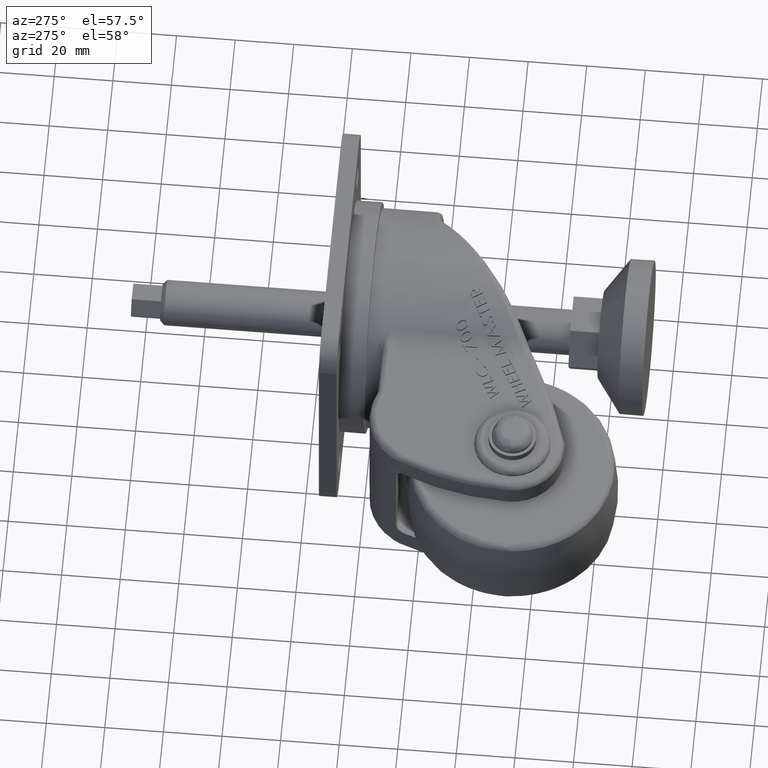
[diagram: clean part render]
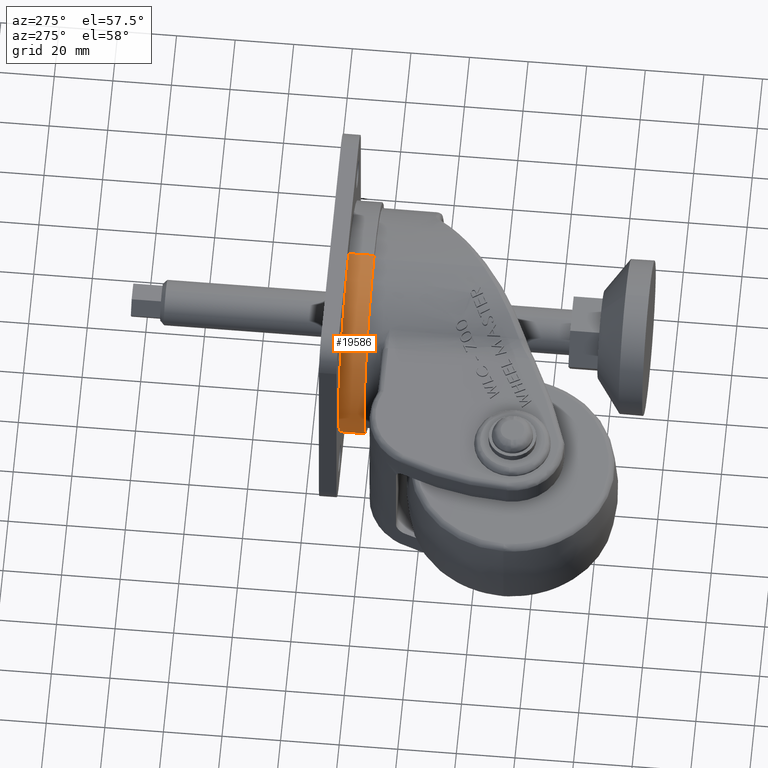
[diagram: same view with one face highlighted and labeled with its STEP entity id]
A machine part, auxiliary view. The second image highlights one B-rep face of the part: STEP entity #19586.
In plain terms, the highlighted cylindrical surface (partial cylindrical patch) has radius 39.5 mm, axis along (-0, 1, -0).
Its self-contained STEP definition (entity closure, byte-faithful):
#916 = DIRECTION ( 'NONE',  ( 0.000000000000000000, 0.000000000000000000, 1.000000000000000000 ) ) ;
#1031 = CARTESIAN_POINT ( 'NONE',  ( 0.000000000000000000, 80.29999999999999716, 39.49999998040800619 ) ) ;
#1117 = CARTESIAN_POINT ( 'NONE',  ( -33.19745024419440682, 89.00000000000000000, 21.41497115212920832 ) ) ;
#1187 = EDGE_CURVE ( 'NONE', #5779, #20802, #22729, .T. ) ;
#1197 = DIRECTION ( 'NONE',  ( -0.000000000000000000, 1.000000000000000000, -0.000000000000000000 ) ) ;
#1387 = DIRECTION ( 'NONE',  ( -0.000000000000000000, 1.000000000000000000, -0.000000000000000000 ) ) ;
#1428 = CARTESIAN_POINT ( 'NONE',  ( -35.99035355916140588, 89.00000000000000000, -16.29013500777266543 ) ) ;
#1588 = CARTESIAN_POINT ( 'NONE',  ( -36.25297974065697559, 89.00000000000002842, -15.69681455255533820 ) ) ;
#1749 = CARTESIAN_POINT ( 'NONE',  ( -38.86586528421318576, 89.00000000000001421, -7.078944962928213513 ) ) ;
#2421 = EDGE_LOOP ( 'NONE', ( #7280, #17792, #18849, #7756 ) ) ;
#3267 = EDGE_CURVE ( 'NONE', #17412, #19523, #11361, .T. ) ;
#3739 = CYLINDRICAL_SURFACE ( 'NONE', #18705, 39.49999998040800619 ) ;
#3817 = CARTESIAN_POINT ( 'NONE',  ( -17.51760761316806025, 89.00000000000001421, 35.49772075280378658 ) ) ;
#3975 = CARTESIAN_POINT ( 'NONE',  ( -23.02495189201184544, 89.00000000000000000, -32.12097803724487477 ) ) ;
#4132 = CARTESIAN_POINT ( 'NONE',  ( -31.41353265104559966, 89.00000000000000000, -24.08457150947154446 ) ) ;
#4295 = CARTESIAN_POINT ( 'NONE',  ( -39.50045397207421161, 89.00000000000001421, -1.274169800030141131 ) ) ;
#4929 = CARTESIAN_POINT ( 'NONE',  ( -5.174531956017145440, 88.99999999999997158, -39.16496630718565797 ) ) ;
#5779 = VERTEX_POINT ( 'NONE', #1031 ) ;
#6063 = CARTESIAN_POINT ( 'NONE',  ( -31.39276687934174248, 88.99999999999998579, 24.11413041087000053 ) ) ;
#6376 = CARTESIAN_POINT ( 'NONE',  ( -33.54721165273151229, 88.99999999999998579, 20.86283143604106982 ) ) ;
#6437 = EDGE_CURVE ( 'NONE', #17412, #5779, #16722, .T. ) ;
#6531 = CARTESIAN_POINT ( 'NONE',  ( -17.49518972110892179, 89.00000000000000000, -35.43793473315627551 ) ) ;
#6689 = CARTESIAN_POINT ( 'NONE',  ( -38.47152834015487599, 89.00000000000001421, 8.978527087342175861 ) ) ;
#6714 = CARTESIAN_POINT ( 'NONE',  ( 4.837354854232717909E-15, 80.29999999999999716, -39.49999998040800619 ) ) ;
#7169 = CARTESIAN_POINT ( 'NONE',  ( -4.527680217453908362, 89.00000000000002842, -39.24506134958510017 ) ) ;
#7280 = ORIENTED_EDGE ( 'NONE', *, *, #3267, .F. ) ;
#7756 = ORIENTED_EDGE ( 'NONE', *, *, #27785, .T. ) ;
#8413 = CARTESIAN_POINT ( 'NONE',  ( 0.000000000000000000, 80.29999999999999716, 0.000000000000000000 ) ) ;
#8452 = CARTESIAN_POINT ( 'NONE',  ( -38.61485039273876652, 89.00000000000000000, 8.340605067278458407 ) ) ;
#8607 = VECTOR ( 'NONE', #8973, 1000.000000000000000 ) ;
#8609 = CARTESIAN_POINT ( 'NONE',  ( -38.15530545590758749, 89.00000000000001421, 10.23938997459638500 ) ) ;
#8763 = CARTESIAN_POINT ( 'NONE',  ( -10.21437220741271368, 89.00000000000000000, 38.17849922172364785 ) ) ;
#8918 = CARTESIAN_POINT ( 'NONE',  ( -24.04196655938168092, 89.00000000000001421, 31.34732559918018069 ) ) ;
#8973 = DIRECTION ( 'NONE',  ( -0.000000000000000000, 1.000000000000000000, -0.000000000000000000 ) ) ;
#9076 = CARTESIAN_POINT ( 'NONE',  ( -39.49908455709736899, 89.00000000000004263, 2.590330965653628414 ) ) ;
#10838 = CARTESIAN_POINT ( 'NONE',  ( -39.24730955313710012, 89.00000000000000000, -4.507983966072860227 ) ) ;
#10992 = CARTESIAN_POINT ( 'NONE',  ( -2.609856899814779752, 89.00000000000002842, 39.49999998040800619 ) ) ;
#11154 = CARTESIAN_POINT ( 'NONE',  ( -34.22271481066151466, 89.00000000000001421, -19.76712995062742095 ) ) ;
#11224 = FACE_OUTER_BOUND ( 'NONE', #2421, .T. ) ;
#11309 = CARTESIAN_POINT ( 'NONE',  ( -22.47037621397057805, 88.99999999999998579, 32.49228740439585295 ) ) ;
#11361 = LINE ( 'NONE', #30832, #8607 ) ;
#11467 = CARTESIAN_POINT ( 'NONE',  ( -35.14033783241541897, 89.00000000000002842, -18.05069430069393377 ) ) ;
#12101 = CARTESIAN_POINT ( 'NONE',  ( 0.000000000000000000, 89.00000000000000000, -39.49999998040801330 ) ) ;
#12990 = CARTESIAN_POINT ( 'NONE',  ( 0.000000000000000000, 192.3175057826853731, 0.000000000000000000 ) ) ;
#13381 = CARTESIAN_POINT ( 'NONE',  ( -26.06665951449643970, 89.00000000000005684, 29.70648275346875877 ) ) ;
#13536 = CARTESIAN_POINT ( 'NONE',  ( -38.97669330826295209, 88.99999999999998579, -6.441195291799109768 ) ) ;
#13696 = AXIS2_PLACEMENT_3D ( 'NONE', #8413, #1387, #916 ) ;
#13698 = CARTESIAN_POINT ( 'NONE',  ( -34.53534946008901585, 89.00000000000000000, 19.18274136650292760 ) ) ;
#13859 = CARTESIAN_POINT ( 'NONE',  ( -12.07570735347381508, 89.00000000000000000, 37.61445987058849738 ) ) ;
#14488 = CARTESIAN_POINT ( 'NONE',  ( -10.25733566947780240, 89.00000000000000000, -38.23213192655326509 ) ) ;
#15757 = CARTESIAN_POINT ( 'NONE',  ( -22.99944763074397258, 88.99999999999997158, 32.12003092999924547 ) ) ;
#16062 = CARTESIAN_POINT ( 'NONE',  ( -26.05326718217936488, 89.00000000000001421, -29.71769941146912686 ) ) ;
#16219 = CARTESIAN_POINT ( 'NONE',  ( -29.75766879086607375, 89.00000000000002842, 26.10311699358117110 ) ) ;
#16377 = CARTESIAN_POINT ( 'NONE',  ( -19.78657433829789980, 88.99999999999998579, 34.28419849795676555 ) ) ;
#16722 = CIRCLE ( 'NONE', #13696, 39.49999998040800619 ) ;
#17412 = VERTEX_POINT ( 'NONE', #6714 ) ;
#17792 = ORIENTED_EDGE ( 'NONE', *, *, #6437, .T. ) ;
#18152 = CARTESIAN_POINT ( 'NONE',  ( -38.23549784011640185, 89.00000000000001421, -10.24538263782099534 ) ) ;
#18309 = CARTESIAN_POINT ( 'NONE',  ( -39.16734450065771966, 89.00000000000000000, -5.156621258177087164 ) ) ;
#18463 = CARTESIAN_POINT ( 'NONE',  ( -27.01593694406648183, 89.00000000000002842, -28.84594908612081099 ) ) ;
#18617 = CARTESIAN_POINT ( 'NONE',  ( -39.43805726543504875, 89.00000000000001421, -2.565648098261644972 ) ) ;
#18705 = AXIS2_PLACEMENT_3D ( 'NONE', #12990, #1197, #20923 ) ;
#18777 = CARTESIAN_POINT ( 'NONE',  ( -36.54995612484427880, 88.99999999999998579, 15.14289280863388498 ) ) ;
#18849 = ORIENTED_EDGE ( 'NONE', *, *, #1187, .T. ) ;
#19523 = VERTEX_POINT ( 'NONE', #30529 ) ;
#19562 = CARTESIAN_POINT ( 'NONE',  ( 0.000000000000000000, 89.00000000000000000, 39.49999998040802041 ) ) ;
#19570 = CARTESIAN_POINT ( 'NONE',  ( -6.457115939170653185, 89.00000000000000000, -38.97404290749087608 ) ) ;
#19586 = ADVANCED_FACE ( 'NONE', ( #11224 ), #3739, .T. ) ;
#19784 = VECTOR ( 'NONE', #28003, 1000.000000000000000 ) ;
#20537 = CARTESIAN_POINT ( 'NONE',  ( -12.69451544413083788, 89.00000000000000000, 37.41021377331797026 ) ) ;
#20690 = CARTESIAN_POINT ( 'NONE',  ( -34.21598413539322792, 89.00000000000000000, 19.74688772562268468 ) ) ;
#20802 = VERTEX_POINT ( 'NONE', #19562 ) ;
#20854 = CARTESIAN_POINT ( 'NONE',  ( -33.55868862091993066, 88.99999999999998579, -20.87393282270026162 ) ) ;
#20923 = DIRECTION ( 'NONE',  ( 0.000000000000000000, 0.000000000000000000, 1.000000000000000000 ) ) ;
#21014 = CARTESIAN_POINT ( 'NONE',  ( -35.43382847852748796, 89.00000000000001421, -17.46762282736825966 ) ) ;
#21170 = CARTESIAN_POINT ( 'NONE',  ( -19.78001912904785797, 89.00000000000000000, -34.21519727816194489 ) ) ;
#22729 = LINE ( 'NONE', #27690, #19784 ) ;
#23109 = CARTESIAN_POINT ( 'NONE',  ( -27.02470238274767667, 89.00000000000001421, 28.83705692550741517 ) ) ;
#23135 = B_SPLINE_CURVE_WITH_KNOTS ( 'NONE', 3,
 ( #25505, #10992, #28221, #28378, #8763, #13859, #20537, #23582, #30455, #3817, #16377, #11309, #15757, #8918, #27914, #13381, #23109, #16219, #6063, #1117, #6376, #20690, #13698, #28542, #18777, #30297, #28068, #8609, #6689, #8452, #23429, #9076, #4295, #18617, #10838, #18309, #13536, #1749, #18152, #23270, #1588, #1428, #21014, #11467, #11154, #20854, #4132, #30615, #18463, #16062, #25815, #3975, #30770, #21170, #6531, #25980, #30931, #14488, #29174, #19570, #4929, #7169, #26452, #23737, #12101 ),
 .UNSPECIFIED., .F., .F.,
 ( 4, 2, 2, 2, 2, 2, 2, 2, 2, 2, 2, 2, 1, 2, 2, 2, 2, 2, 2, 2, 2, 2, 2, 2, 2, 2, 2, 2, 2, 2, 2, 2, 4 ),
 ( 3.445219015931851346E-18, 0.007718441453414432232, 0.01157766218012164748, 0.01350727254347525164, 0.01543688290682885579, 0.02315532436024329149, 0.02508493472359690432, 0.02701454508695052062, 0.03087376581365774628, 0.03859220726707221494, 0.04052181763042583817, 0.04245142799377945447, 0.04631064872048668707, 0.05016986944719393354, 0.05209947981054754984, 0.05402909017390116614, 0.06174753162731562439, 0.06560675235402285699, 0.06753636271737646635, 0.06946597308073010346, 0.07718441453414456865, 0.07911402489749819189, 0.08104363526085180125, 0.08490285598755904772, 0.09262129744097351292, 0.09648051816768074551, 0.1003397388943879781, 0.1041989596210952107, 0.1080581803478024433, 0.1157766218012168946, 0.1177062321645705317, 0.1196358425279241411, 0.1234950632546313876 ),
 .UNSPECIFIED. ) ;
#23270 = CARTESIAN_POINT ( 'NONE',  ( -37.48945069339552560, 89.00000000000001421, -12.70777497065287953 ) ) ;
#23429 = CARTESIAN_POINT ( 'NONE',  ( -39.24855585613053677, 89.00000000000001421, 5.153513975458260177 ) ) ;
#23582 = CARTESIAN_POINT ( 'NONE',  ( -13.92186422386641986, 89.00000000000001421, 36.97102261851644300 ) ) ;
#23737 = CARTESIAN_POINT ( 'NONE',  ( -1.288997723360813863, 88.99999999999997158, -39.49999998040800619 ) ) ;
#25505 = CARTESIAN_POINT ( 'NONE',  ( 0.000000000000000000, 89.00000000000000000, 39.49999998040802041 ) ) ;
#25815 = CARTESIAN_POINT ( 'NONE',  ( -24.05858620888006882, 89.00000000000000000, -31.35440668879483539 ) ) ;
#25980 = CARTESIAN_POINT ( 'NONE',  ( -16.31080175204220239, 89.00000000000000000, -35.99841827593324695 ) ) ;
#26452 = CARTESIAN_POINT ( 'NONE',  ( -2.581991600513330987, 88.99999999999998579, -39.43706680212240911 ) ) ;
#27690 = CARTESIAN_POINT ( 'NONE',  ( 0.000000000000000000, 192.3175057826853731, 39.49999998040800619 ) ) ;
#27785 = EDGE_CURVE ( 'NONE', #20802, #19523, #23135, .T. ) ;
#27914 = CARTESIAN_POINT ( 'NONE',  ( -24.55674056481809941, 89.00000000000002842, 30.94576636032945061 ) ) ;
#28003 = DIRECTION ( 'NONE',  ( -0.000000000000000000, 1.000000000000000000, -0.000000000000000000 ) ) ;
#28068 = CARTESIAN_POINT ( 'NONE',  ( -37.98221047593857236, 89.00000000000004263, 10.86366227925296002 ) ) ;
#28221 = CARTESIAN_POINT ( 'NONE',  ( -5.176096464959984544, 89.00000000000001421, 39.24388373993608781 ) ) ;
#28378 = CARTESIAN_POINT ( 'NONE',  ( -8.962705410343712487, 88.99999999999998579, 38.49124584848634356 ) ) ;
#28542 = CARTESIAN_POINT ( 'NONE',  ( -35.44921342969080058, 89.00000000000001421, 17.47212026395156315 ) ) ;
#29174 = CARTESIAN_POINT ( 'NONE',  ( -7.094057324168283607, 89.00000000000004263, -38.86309981393970503 ) ) ;
#30297 = CARTESIAN_POINT ( 'NONE',  ( -37.41876597797633508, 89.00000000000001421, 12.71832694788874818 ) ) ;
#30455 = CARTESIAN_POINT ( 'NONE',  ( -14.52761979004159798, 89.00000000000001421, 36.73713800748189584 ) ) ;
#30529 = CARTESIAN_POINT ( 'NONE',  ( 0.000000000000000000, 89.00000000000000000, -39.49999998040801330 ) ) ;
#30615 = CARTESIAN_POINT ( 'NONE',  ( -29.78082049932634234, 89.00000000000000000, -26.07970946175597859 ) ) ;
#30770 = CARTESIAN_POINT ( 'NONE',  ( -20.88566722291820454, 89.00000000000000000, -33.55137172087226105 ) ) ;
#30832 = CARTESIAN_POINT ( 'NONE',  ( 4.837354854232717909E-15, 192.3175057826853731, -39.49999998040800619 ) ) ;
#30931 = CARTESIAN_POINT ( 'NONE',  ( -12.72000005053017802, 89.00000000000001421, -37.48553176909309315 ) ) ;